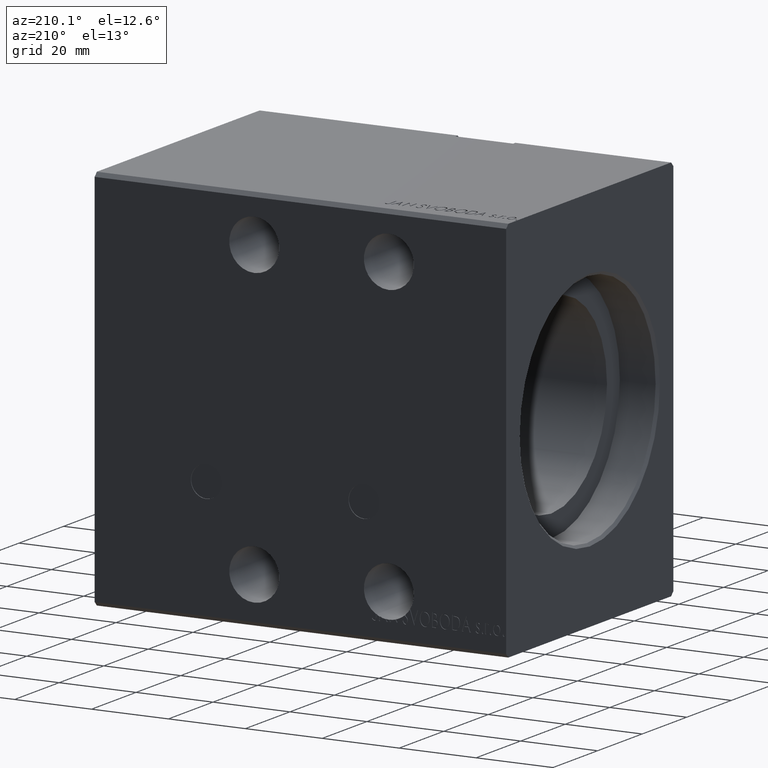
[diagram: clean part render]
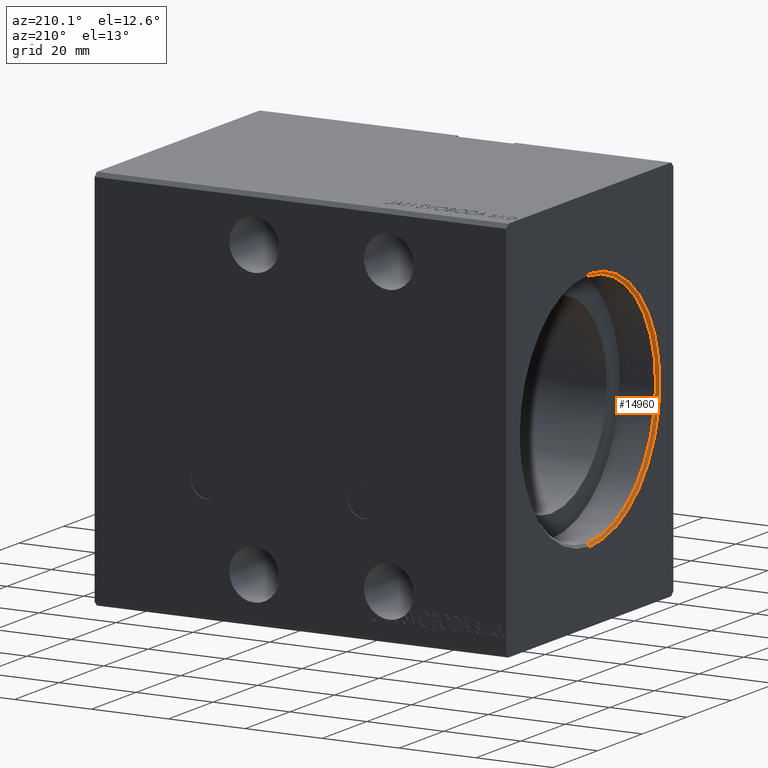
[diagram: same view with one face highlighted and labeled with its STEP entity id]
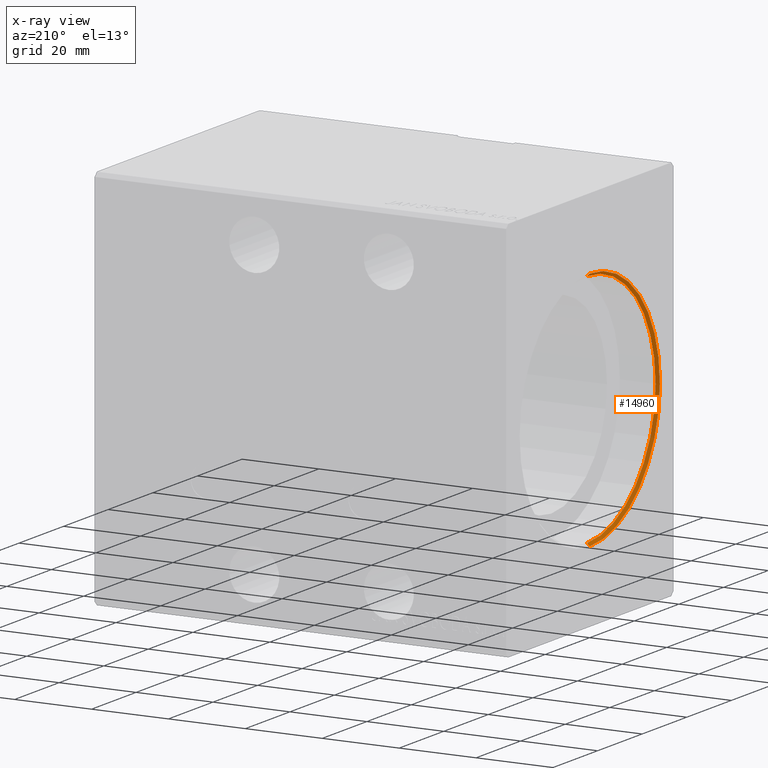
[diagram: x-ray of the same camera — body ghosted, the highlighted face saturated]
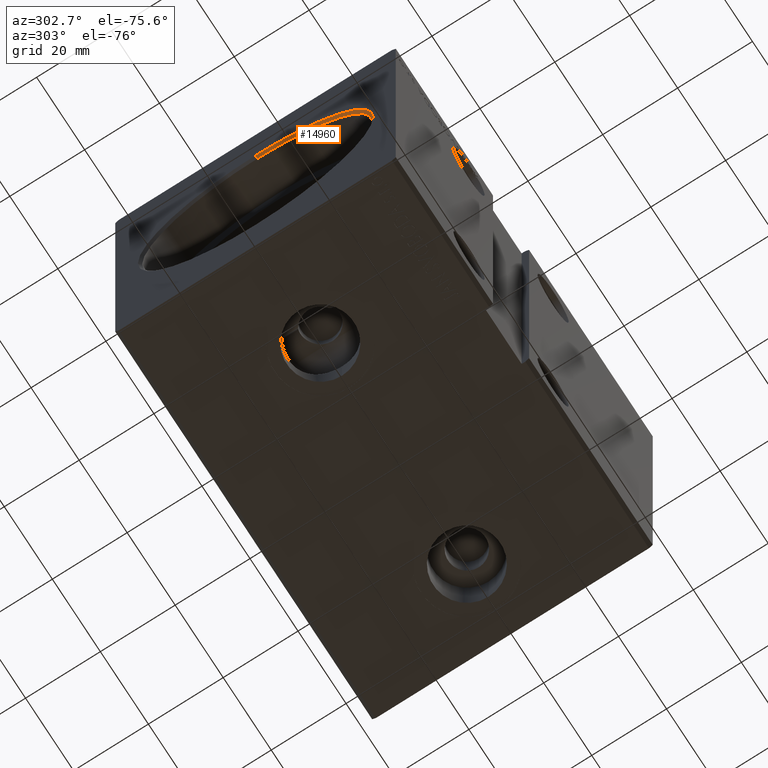
[diagram: same view with one face highlighted and labeled with its STEP entity id]
A machine part, auxiliary view. The second image highlights one B-rep face of the part: STEP entity #14960.
The next image is the same camera in x-ray: the body ghosted, the highlighted face saturated — about 0% of this face is hidden behind the body in this view.
A second angle (auxiliary view) of the same face is appended — the face is thin or edge-on in the first view.
In plain terms, the highlighted conical surface has half-angle 45 deg.
Its self-contained STEP definition (entity closure, byte-faithful):
#108 = LINE ( 'NONE', #27129, #27199 ) ;
#1163 = DIRECTION ( 'NONE',  ( -1.000000000000000000, 0.000000000000000000, 0.000000000000000000 ) ) ;
#3526 = CARTESIAN_POINT ( 'NONE',  ( 0.7000000000000234923, 3.765788907378110539E-15, -30.75000000000000355 ) ) ;
#4959 = CARTESIAN_POINT ( 'NONE',  ( 0.7000000000000234923, 0.000000000000000000, 30.75000000000000355 ) ) ;
#5346 = CARTESIAN_POINT ( 'NONE',  ( 0.000000000000000000, 3.851514183318427194E-15, -31.45000000000002061 ) ) ;
#5766 = AXIS2_PLACEMENT_3D ( 'NONE', #18392, #27908, #37849 ) ;
#8210 = CARTESIAN_POINT ( 'NONE',  ( 0.7000000000000234923, 3.765788907378111328E-15, -30.75000000000000355 ) ) ;
#9035 = EDGE_CURVE ( 'NONE', #11441, #13187, #108, .T. ) ;
#10157 = DIRECTION ( 'NONE',  ( -1.000000000000000000, 0.000000000000000000, 0.000000000000000000 ) ) ;
#11441 = VERTEX_POINT ( 'NONE', #4959 ) ;
#12211 = AXIS2_PLACEMENT_3D ( 'NONE', #26113, #10157, #38750 ) ;
#13187 = VERTEX_POINT ( 'NONE', #37869 ) ;
#13815 = DIRECTION ( 'NONE',  ( 0.000000000000000000, 0.000000000000000000, -1.000000000000000000 ) ) ;
#14294 = VERTEX_POINT ( 'NONE', #8210 ) ;
#14796 = AXIS2_PLACEMENT_3D ( 'NONE', #21234, #1163, #13815 ) ;
#14960 = ADVANCED_FACE ( 'NONE', ( #19490 ), #30066, .F. ) ;
#16786 = VERTEX_POINT ( 'NONE', #5346 ) ;
#16999 = DIRECTION ( 'NONE',  ( -0.7071067811865509034, 8.659560562354890950E-17, -0.7071067811865441310 ) ) ;
#18392 = CARTESIAN_POINT ( 'NONE',  ( 0.000000000000000000, 0.000000000000000000, 0.000000000000000000 ) ) ;
#18570 = ORIENTED_EDGE ( 'NONE', *, *, #28954, .F. ) ;
#19490 = FACE_OUTER_BOUND ( 'NONE', #22182, .T. ) ;
#21234 = CARTESIAN_POINT ( 'NONE',  ( 0.7000000000000234923, 0.000000000000000000, 0.000000000000000000 ) ) ;
#21256 = ORIENTED_EDGE ( 'NONE', *, *, #25049, .T. ) ;
#22182 = EDGE_LOOP ( 'NONE', ( #18570, #21256, #27572, #36907 ) ) ;
#25049 = EDGE_CURVE ( 'NONE', #14294, #16786, #29217, .T. ) ;
#25561 = VECTOR ( 'NONE', #16999, 999.9999999999998863 ) ;
#26113 = CARTESIAN_POINT ( 'NONE',  ( 0.7000000000000234923, 0.000000000000000000, 0.000000000000000000 ) ) ;
#26806 = EDGE_CURVE ( 'NONE', #13187, #16786, #32217, .T. ) ;
#27129 = CARTESIAN_POINT ( 'NONE',  ( 0.7000000000000234923, 0.000000000000000000, 30.75000000000000355 ) ) ;
#27199 = VECTOR ( 'NONE', #39765, 999.9999999999998863 ) ;
#27572 = ORIENTED_EDGE ( 'NONE', *, *, #26806, .F. ) ;
#27908 = DIRECTION ( 'NONE',  ( 1.000000000000000000, 0.000000000000000000, 0.000000000000000000 ) ) ;
#28954 = EDGE_CURVE ( 'NONE', #14294, #11441, #32648, .T. ) ;
#29217 = LINE ( 'NONE', #3526, #25561 ) ;
#30066 = CONICAL_SURFACE ( 'NONE', #12211, 30.75000000000000355, 0.7853981633974433940 ) ;
#32217 = CIRCLE ( 'NONE', #5766, 31.45000000000002061 ) ;
#32648 = CIRCLE ( 'NONE', #14796, 30.75000000000000355 ) ;
#36907 = ORIENTED_EDGE ( 'NONE', *, *, #9035, .F. ) ;
#37849 = DIRECTION ( 'NONE',  ( 0.000000000000000000, 0.000000000000000000, -1.000000000000000000 ) ) ;
#37869 = CARTESIAN_POINT ( 'NONE',  ( 0.000000000000000000, 0.000000000000000000, 31.45000000000002061 ) ) ;
#38750 = DIRECTION ( 'NONE',  ( 0.000000000000000000, 0.000000000000000000, 1.000000000000000000 ) ) ;
#39765 = DIRECTION ( 'NONE',  ( -0.7071067811865509034, 0.000000000000000000, 0.7071067811865441310 ) ) ;